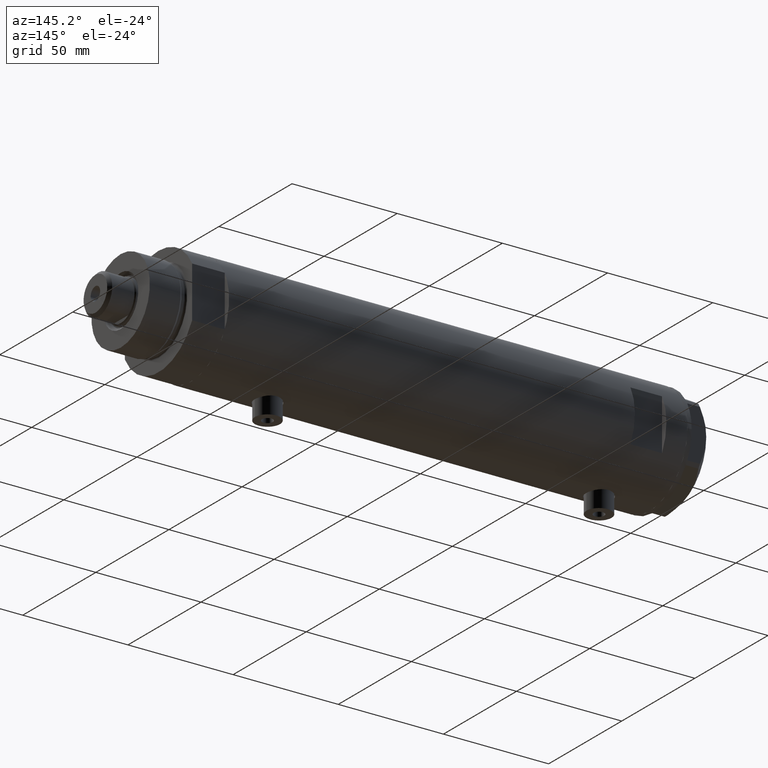
[diagram: clean part render]
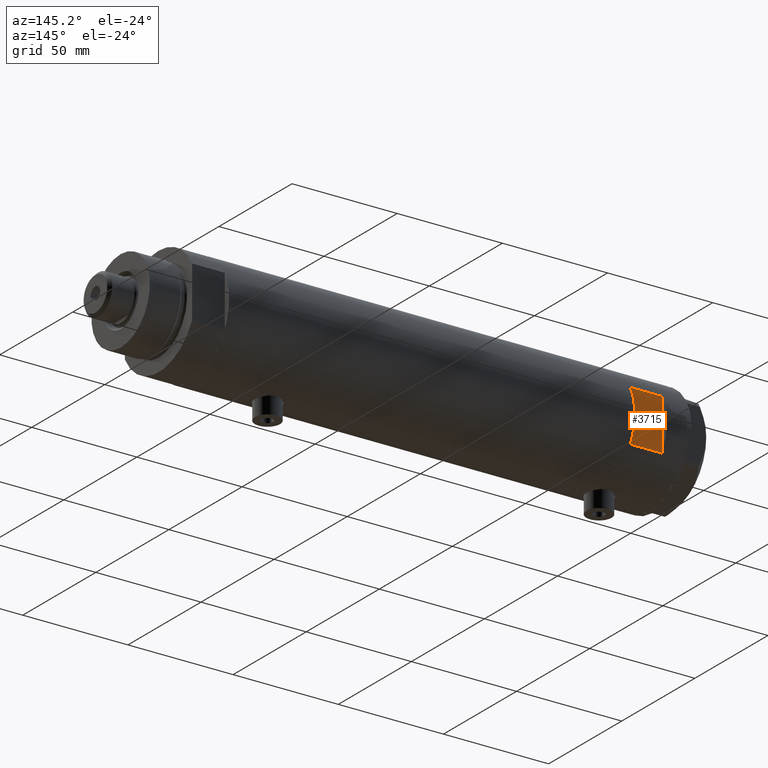
[diagram: same view with one face highlighted and labeled with its STEP entity id]
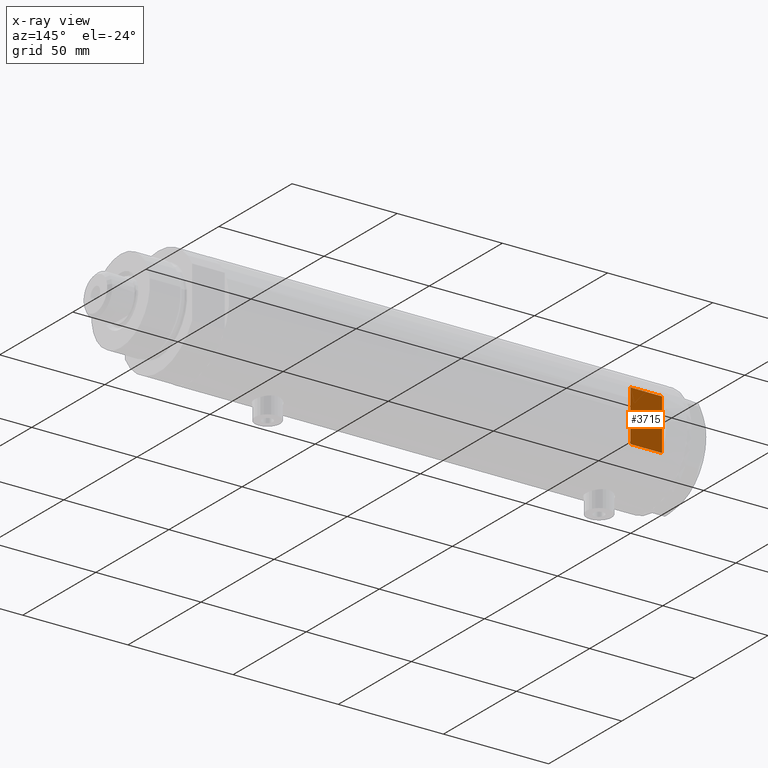
[diagram: x-ray of the same camera — body ghosted, the highlighted face saturated]
A machine part, auxiliary view. The second image highlights one B-rep face of the part: STEP entity #3715.
The next image is the same camera in x-ray: the body ghosted, the highlighted face saturated — about 0% of this face is hidden behind the body in this view.
In plain terms, the highlighted planar face has unit normal (0, -1, -0).
Its self-contained STEP definition (entity closure, byte-faithful):
#72 = VERTEX_POINT ( 'NONE', #3991 ) ;
#245 = VERTEX_POINT ( 'NONE', #3413 ) ;
#331 = VECTOR ( 'NONE', #4147, 1000.000000000000000 ) ;
#352 = PLANE ( 'NONE',  #2775 ) ;
#387 = CARTESIAN_POINT ( 'NONE',  ( -26.00000000000000355, 23.00000000000000355, 83.95000000000003126 ) ) ;
#434 = VECTOR ( 'NONE', #4380, 1000.000000000000000 ) ;
#543 = EDGE_CURVE ( 'NONE', #2935, #245, #2005, .T. ) ;
#764 = VECTOR ( 'NONE', #1817, 1000.000000000000000 ) ;
#1111 = DIRECTION ( 'NONE',  ( 0.000000000000000000, -1.000000000000000000, -0.000000000000000000 ) ) ;
#1187 = FACE_OUTER_BOUND ( 'NONE', #1875, .T. ) ;
#1213 = CARTESIAN_POINT ( 'NONE',  ( -12.12435565298214080, 23.00000000000000355, -108.9500000000000028 ) ) ;
#1365 = VECTOR ( 'NONE', #4321, 1000.000000000000000 ) ;
#1608 = ORIENTED_EDGE ( 'NONE', *, *, #2134, .T. ) ;
#1704 = VERTEX_POINT ( 'NONE', #2090 ) ;
#1817 = DIRECTION ( 'NONE',  ( 1.000000000000000000, -0.000000000000000000, -0.000000000000000000 ) ) ;
#1875 = EDGE_LOOP ( 'NONE', ( #2328, #3576, #5062, #1608 ) ) ;
#1959 = CARTESIAN_POINT ( 'NONE',  ( -26.00000000000000355, 23.00000000000000355, 98.95000000000001705 ) ) ;
#2005 = LINE ( 'NONE', #1213, #331 ) ;
#2090 = CARTESIAN_POINT ( 'NONE',  ( 12.12435565298213724, 23.00000000000000355, 83.95000000000003126 ) ) ;
#2134 = EDGE_CURVE ( 'NONE', #245, #72, #3824, .T. ) ;
#2328 = ORIENTED_EDGE ( 'NONE', *, *, #4166, .T. ) ;
#2775 = AXIS2_PLACEMENT_3D ( 'NONE', #1959, #1111, #2791 ) ;
#2783 = CARTESIAN_POINT ( 'NONE',  ( 12.12435565298214080, 23.00000000000000355, -108.9500000000000028 ) ) ;
#2791 = DIRECTION ( 'NONE',  ( 0.000000000000000000, 0.000000000000000000, -1.000000000000000000 ) ) ;
#2935 = VERTEX_POINT ( 'NONE', #4015 ) ;
#3413 = CARTESIAN_POINT ( 'NONE',  ( -12.12435565298214080, 23.00000000000000355, 98.95000000000001705 ) ) ;
#3576 = ORIENTED_EDGE ( 'NONE', *, *, #5190, .F. ) ;
#3715 = ADVANCED_FACE ( 'NONE', ( #1187 ), #352, .F. ) ;
#3824 = LINE ( 'NONE', #4571, #764 ) ;
#3920 = LINE ( 'NONE', #387, #1365 ) ;
#3991 = CARTESIAN_POINT ( 'NONE',  ( 12.12435565298214080, 23.00000000000000355, 98.95000000000001705 ) ) ;
#4002 = LINE ( 'NONE', #2783, #434 ) ;
#4015 = CARTESIAN_POINT ( 'NONE',  ( -12.12435565298214080, 23.00000000000000355, 83.95000000000003126 ) ) ;
#4147 = DIRECTION ( 'NONE',  ( 0.000000000000000000, 0.000000000000000000, 1.000000000000000000 ) ) ;
#4166 = EDGE_CURVE ( 'NONE', #72, #1704, #4002, .T. ) ;
#4321 = DIRECTION ( 'NONE',  ( 1.000000000000000000, -0.000000000000000000, -0.000000000000000000 ) ) ;
#4380 = DIRECTION ( 'NONE',  ( -0.000000000000000000, -0.000000000000000000, -1.000000000000000000 ) ) ;
#4571 = CARTESIAN_POINT ( 'NONE',  ( -26.00000000000000355, 23.00000000000000355, 98.95000000000001705 ) ) ;
#5062 = ORIENTED_EDGE ( 'NONE', *, *, #543, .T. ) ;
#5190 = EDGE_CURVE ( 'NONE', #2935, #1704, #3920, .T. ) ;